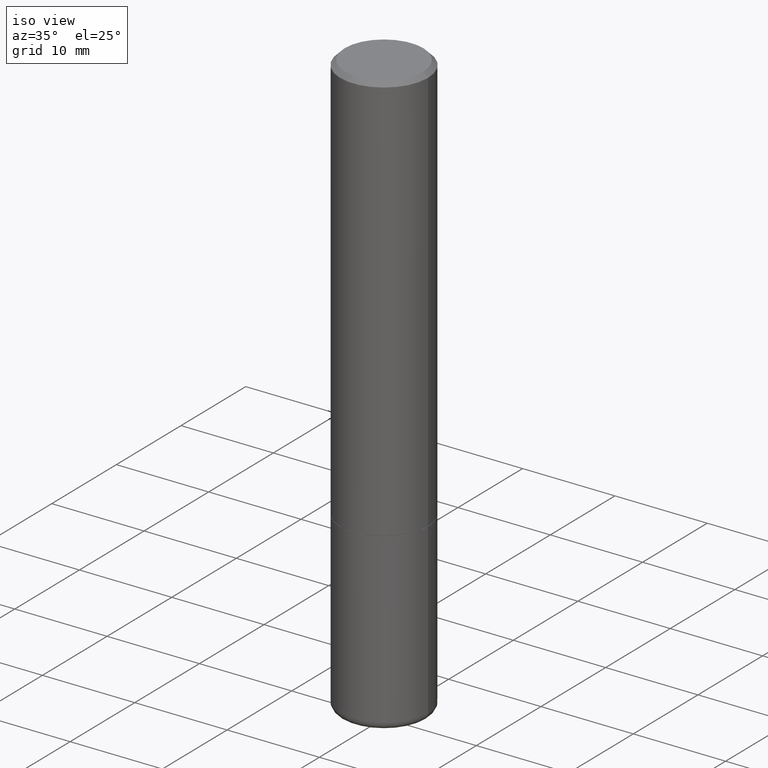
[diagram: clean part render]
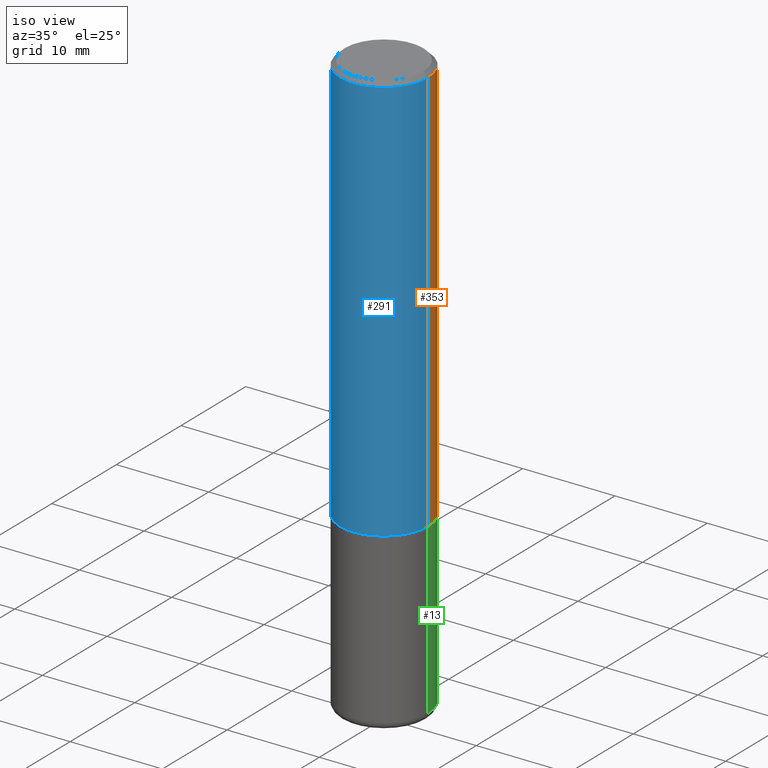
[diagram: same view with three faces highlighted in distinct colors, each labeled with its STEP entity id]
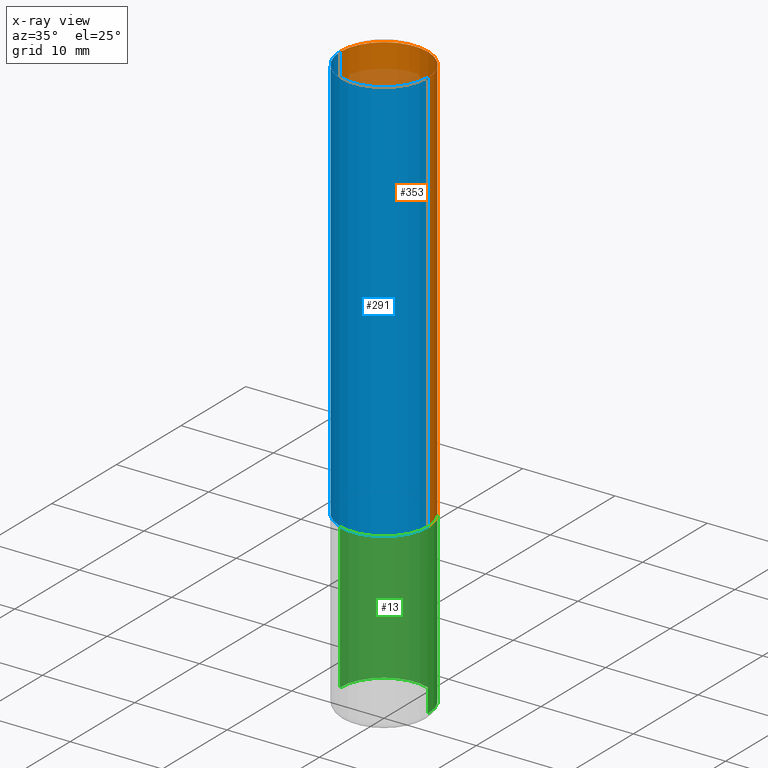
[diagram: x-ray of the same camera — body ghosted, the three highlighted faces saturated]
A machine part, iso view with three faces highlighted in distinct colors.
The next image is the same camera in x-ray (body ghosted, the three faces saturated) — at least one of them is partly hidden behind the body in this view.
Their STEP definitions:

[orange] entity #353 — the highlighted cylindrical surface (partial cylindrical patch) has radius 4.7625 mm, axis along (-0, 0, 1).
#17 = DIRECTION ( 'NONE',  ( 1.000000000000000000, -6.982962677686266711E-15, 4.876176775795935793E-29 ) ) ;
#20 = AXIS2_PLACEMENT_3D ( 'NONE', #243, #95, #96 ) ;
#22 = CARTESIAN_POINT ( 'NONE',  ( 0.000000000000000000, 0.000000000000000000, 0.000000000000000000 ) ) ;
#30 = VECTOR ( 'NONE', #292, 39.37007874015748143 ) ;
#41 = EDGE_CURVE ( 'NONE', #64, #289, #71, .T. ) ;
#45 = AXIS2_PLACEMENT_3D ( 'NONE', #22, #110, #17 ) ;
#48 = CARTESIAN_POINT ( 'NONE',  ( -0.1875000000000001943, -1.755947614656571871E-15, -1.749000000000000110 ) ) ;
#49 = CIRCLE ( 'NONE', #394, 0.1875000000000001943 ) ;
#64 = VERTEX_POINT ( 'NONE', #241 ) ;
#71 = CIRCLE ( 'NONE', #20, 0.1875000000000000555 ) ;
#83 = EDGE_CURVE ( 'NONE', #385, #64, #244, .T. ) ;
#84 = ORIENTED_EDGE ( 'NONE', *, *, #41, .F. ) ;
#95 = DIRECTION ( 'NONE',  ( -2.445468806185136597E-29, 3.491481338843145583E-15, 1.000000000000000000 ) ) ;
#96 = DIRECTION ( 'NONE',  ( 1.000000000000000000, -6.982962677686265922E-15, 0.000000000000000000 ) ) ;
#110 = DIRECTION ( 'NONE',  ( -2.445468806185136597E-29, 3.491481338843145583E-15, 1.000000000000000000 ) ) ;
#146 = DIRECTION ( 'NONE',  ( 1.000000000000000000, -6.982962677686265922E-15, 0.000000000000000000 ) ) ;
#163 = ORIENTED_EDGE ( 'NONE', *, *, #403, .T. ) ;
#168 = CARTESIAN_POINT ( 'NONE',  ( 0.1875000000000001110, -1.309305502066175797E-15, 9.142831454617385217E-30 ) ) ;
#178 = CYLINDRICAL_SURFACE ( 'NONE', #45, 0.1875000000000001110 ) ;
#216 = EDGE_CURVE ( 'NONE', #385, #327, #49, .T. ) ;
#226 = CARTESIAN_POINT ( 'NONE',  ( 0.1875000000000001943, -7.415906363702837461E-15, -1.749000000000000110 ) ) ;
#229 = ORIENTED_EDGE ( 'NONE', *, *, #216, .T. ) ;
#238 = DIRECTION ( 'NONE',  ( -2.445468806185136877E-29, 3.491481338843145188E-15, 1.000000000000000000 ) ) ;
#241 = CARTESIAN_POINT ( 'NONE',  ( 0.1875000000000000555, -1.356173001359025663E-15, -0.02000000000000004205 ) ) ;
#243 = CARTESIAN_POINT ( 'NONE',  ( 4.890937612370283668E-31, -6.982962677686305168E-17, -0.02000000000000004205 ) ) ;
#244 = LINE ( 'NONE', #168, #386 ) ;
#251 = CARTESIAN_POINT ( 'NONE',  ( -0.1875000000000000555, 1.239475875289312104E-15, -0.02000000000000004205 ) ) ;
#283 = ORIENTED_EDGE ( 'NONE', *, *, #83, .F. ) ;
#289 = VERTEX_POINT ( 'NONE', #251 ) ;
#292 = DIRECTION ( 'NONE',  ( -2.445468806185136877E-29, 3.491481338843145188E-15, 1.000000000000000000 ) ) ;
#298 = EDGE_LOOP ( 'NONE', ( #229, #163, #84, #283 ) ) ;
#315 = DIRECTION ( 'NONE',  ( -2.445468806185136597E-29, 3.491481338843145583E-15, 1.000000000000000000 ) ) ;
#318 = FACE_OUTER_BOUND ( 'NONE', #298, .T. ) ;
#326 = CARTESIAN_POINT ( 'NONE',  ( -0.1875000000000001110, 1.332267629550188637E-15, -9.223003294227953596E-30 ) ) ;
#327 = VERTEX_POINT ( 'NONE', #48 ) ;
#353 = ADVANCED_FACE ( 'NONE', ( #318 ), #178, .T. ) ;
#385 = VERTEX_POINT ( 'NONE', #226 ) ;
#386 = VECTOR ( 'NONE', #238, 39.37007874015748143 ) ;
#394 = AXIS2_PLACEMENT_3D ( 'NONE', #402, #315, #146 ) ;
#402 = CARTESIAN_POINT ( 'NONE',  ( 4.277124942017804562E-29, -6.106600861636661664E-15, -1.749000000000000110 ) ) ;
#403 = EDGE_CURVE ( 'NONE', #327, #289, #411, .T. ) ;
#411 = LINE ( 'NONE', #326, #30 ) ;

[blue] entity #291 — the highlighted cylindrical surface (partial cylindrical patch) has radius 4.7625 mm, axis along (-0, 0, 1).
#26 = EDGE_LOOP ( 'NONE', ( #123, #293, #320, #199 ) ) ;
#30 = VECTOR ( 'NONE', #292, 39.37007874015748143 ) ;
#48 = CARTESIAN_POINT ( 'NONE',  ( -0.1875000000000001943, -1.755947614656571871E-15, -1.749000000000000110 ) ) ;
#55 = DIRECTION ( 'NONE',  ( 1.000000000000000000, -6.982962677686265922E-15, 0.000000000000000000 ) ) ;
#64 = VERTEX_POINT ( 'NONE', #241 ) ;
#83 = EDGE_CURVE ( 'NONE', #385, #64, #244, .T. ) ;
#106 = CARTESIAN_POINT ( 'NONE',  ( 0.000000000000000000, 0.000000000000000000, 0.000000000000000000 ) ) ;
#123 = ORIENTED_EDGE ( 'NONE', *, *, #403, .F. ) ;
#139 = AXIS2_PLACEMENT_3D ( 'NONE', #278, #406, #182 ) ;
#168 = CARTESIAN_POINT ( 'NONE',  ( 0.1875000000000001110, -1.309305502066175797E-15, 9.142831454617385217E-30 ) ) ;
#182 = DIRECTION ( 'NONE',  ( 1.000000000000000000, -6.982962677686265922E-15, 0.000000000000000000 ) ) ;
#183 = AXIS2_PLACEMENT_3D ( 'NONE', #106, #346, #374 ) ;
#199 = ORIENTED_EDGE ( 'NONE', *, *, #213, .F. ) ;
#205 = EDGE_CURVE ( 'NONE', #327, #385, #413, .T. ) ;
#213 = EDGE_CURVE ( 'NONE', #289, #64, #331, .T. ) ;
#215 = FACE_OUTER_BOUND ( 'NONE', #26, .T. ) ;
#223 = DIRECTION ( 'NONE',  ( -2.445468806185136597E-29, 3.491481338843145583E-15, 1.000000000000000000 ) ) ;
#226 = CARTESIAN_POINT ( 'NONE',  ( 0.1875000000000001943, -7.415906363702837461E-15, -1.749000000000000110 ) ) ;
#238 = DIRECTION ( 'NONE',  ( -2.445468806185136877E-29, 3.491481338843145188E-15, 1.000000000000000000 ) ) ;
#241 = CARTESIAN_POINT ( 'NONE',  ( 0.1875000000000000555, -1.356173001359025663E-15, -0.02000000000000004205 ) ) ;
#244 = LINE ( 'NONE', #168, #386 ) ;
#251 = CARTESIAN_POINT ( 'NONE',  ( -0.1875000000000000555, 1.239475875289312104E-15, -0.02000000000000004205 ) ) ;
#255 = CYLINDRICAL_SURFACE ( 'NONE', #183, 0.1875000000000001110 ) ;
#278 = CARTESIAN_POINT ( 'NONE',  ( 4.890937612370283668E-31, -6.982962677686305168E-17, -0.02000000000000004205 ) ) ;
#289 = VERTEX_POINT ( 'NONE', #251 ) ;
#291 = ADVANCED_FACE ( 'NONE', ( #215 ), #255, .T. ) ;
#292 = DIRECTION ( 'NONE',  ( -2.445468806185136877E-29, 3.491481338843145188E-15, 1.000000000000000000 ) ) ;
#293 = ORIENTED_EDGE ( 'NONE', *, *, #205, .T. ) ;
#305 = AXIS2_PLACEMENT_3D ( 'NONE', #312, #223, #55 ) ;
#312 = CARTESIAN_POINT ( 'NONE',  ( 4.277124942017804562E-29, -6.106600861636661664E-15, -1.749000000000000110 ) ) ;
#320 = ORIENTED_EDGE ( 'NONE', *, *, #83, .T. ) ;
#326 = CARTESIAN_POINT ( 'NONE',  ( -0.1875000000000001110, 1.332267629550188637E-15, -9.223003294227953596E-30 ) ) ;
#327 = VERTEX_POINT ( 'NONE', #48 ) ;
#331 = CIRCLE ( 'NONE', #139, 0.1875000000000000555 ) ;
#346 = DIRECTION ( 'NONE',  ( -2.445468806185136597E-29, 3.491481338843145583E-15, 1.000000000000000000 ) ) ;
#374 = DIRECTION ( 'NONE',  ( 1.000000000000000000, -6.982962677686266711E-15, 4.876176775795935793E-29 ) ) ;
#385 = VERTEX_POINT ( 'NONE', #226 ) ;
#386 = VECTOR ( 'NONE', #238, 39.37007874015748143 ) ;
#403 = EDGE_CURVE ( 'NONE', #327, #289, #411, .T. ) ;
#406 = DIRECTION ( 'NONE',  ( -2.445468806185136597E-29, 3.491481338843145583E-15, 1.000000000000000000 ) ) ;
#411 = LINE ( 'NONE', #326, #30 ) ;
#413 = CIRCLE ( 'NONE', #305, 0.1875000000000001943 ) ;

[green] entity #13 — the highlighted cylindrical surface (partial cylindrical patch) has radius 4.7625 mm, axis along (-0, 0, 1).
#3 = CIRCLE ( 'NONE', #202, 0.1875000000000000278 ) ;
#13 = ADVANCED_FACE ( 'NONE', ( #153 ), #227, .T. ) ;
#34 = CARTESIAN_POINT ( 'NONE',  ( -0.1875000000000000278, -6.034757995408850668E-15, -1.750000000000000222 ) ) ;
#47 = CARTESIAN_POINT ( 'NONE',  ( -0.1874999999999999722, -7.291691277392382147E-15, -2.470000000000000195 ) ) ;
#50 = CARTESIAN_POINT ( 'NONE',  ( 0.1875000000000000278, -7.419397845041680468E-15, -1.750000000000000222 ) ) ;
#57 = DIRECTION ( 'NONE',  ( -2.445468806185136597E-29, 3.491481338843145583E-15, 1.000000000000000000 ) ) ;
#60 = ORIENTED_EDGE ( 'NONE', *, *, #247, .F. ) ;
#74 = DIRECTION ( 'NONE',  ( -2.445468806185136877E-29, 3.491481338843145188E-15, 1.000000000000000000 ) ) ;
#79 = CARTESIAN_POINT ( 'NONE',  ( 0.1874999999999999722, -9.933264409008746581E-15, -2.470000000000000195 ) ) ;
#90 = VECTOR ( 'NONE', #74, 39.37007874015748143 ) ;
#109 = VECTOR ( 'NONE', #189, 39.37007874015748143 ) ;
#116 = DIRECTION ( 'NONE',  ( -2.445468806185136597E-29, 3.491481338843145583E-15, 1.000000000000000000 ) ) ;
#147 = AXIS2_PLACEMENT_3D ( 'NONE', #412, #116, #262 ) ;
#150 = ORIENTED_EDGE ( 'NONE', *, *, #391, .T. ) ;
#153 = FACE_OUTER_BOUND ( 'NONE', #160, .T. ) ;
#160 = EDGE_LOOP ( 'NONE', ( #356, #150, #60, #354 ) ) ;
#180 = DIRECTION ( 'NONE',  ( 1.000000000000000000, -6.982962677686266711E-15, 0.000000000000000000 ) ) ;
#188 = VERTEX_POINT ( 'NONE', #47 ) ;
#189 = DIRECTION ( 'NONE',  ( -2.445468806185136877E-29, 3.491481338843145188E-15, 1.000000000000000000 ) ) ;
#202 = AXIS2_PLACEMENT_3D ( 'NONE', #282, #249, #180 ) ;
#227 = CYLINDRICAL_SURFACE ( 'NONE', #147, 0.1875000000000000278 ) ;
#247 = EDGE_CURVE ( 'NONE', #347, #389, #3, .T. ) ;
#249 = DIRECTION ( 'NONE',  ( -2.445468806185136597E-29, 3.491481338843145583E-15, 1.000000000000000000 ) ) ;
#257 = DIRECTION ( 'NONE',  ( 1.000000000000000000, -6.982962677686266711E-15, 0.000000000000000000 ) ) ;
#262 = DIRECTION ( 'NONE',  ( 1.000000000000000000, -6.982962677686265922E-15, 4.876176775795935793E-29 ) ) ;
#282 = CARTESIAN_POINT ( 'NONE',  ( 4.279570410823989044E-29, -6.110092342975505460E-15, -1.750000000000000222 ) ) ;
#284 = AXIS2_PLACEMENT_3D ( 'NONE', #321, #57, #257 ) ;
#286 = EDGE_CURVE ( 'NONE', #301, #347, #341, .T. ) ;
#297 = LINE ( 'NONE', #350, #109 ) ;
#301 = VERTEX_POINT ( 'NONE', #79 ) ;
#317 = CIRCLE ( 'NONE', #284, 0.1875000000000000278 ) ;
#321 = CARTESIAN_POINT ( 'NONE',  ( 6.040307951277287977E-29, -8.623958906942569995E-15, -2.470000000000000195 ) ) ;
#341 = LINE ( 'NONE', #409, #90 ) ;
#347 = VERTEX_POINT ( 'NONE', #50 ) ;
#350 = CARTESIAN_POINT ( 'NONE',  ( -0.1875000000000000278, 1.332267629550188046E-15, -9.223003294227947991E-30 ) ) ;
#354 = ORIENTED_EDGE ( 'NONE', *, *, #286, .F. ) ;
#356 = ORIENTED_EDGE ( 'NONE', *, *, #401, .T. ) ;
#389 = VERTEX_POINT ( 'NONE', #34 ) ;
#391 = EDGE_CURVE ( 'NONE', #188, #389, #297, .T. ) ;
#401 = EDGE_CURVE ( 'NONE', #301, #188, #317, .T. ) ;
#409 = CARTESIAN_POINT ( 'NONE',  ( 0.1875000000000000278, -1.309305502066175008E-15, 9.142831454617381013E-30 ) ) ;
#412 = CARTESIAN_POINT ( 'NONE',  ( 0.000000000000000000, 0.000000000000000000, 0.000000000000000000 ) ) ;